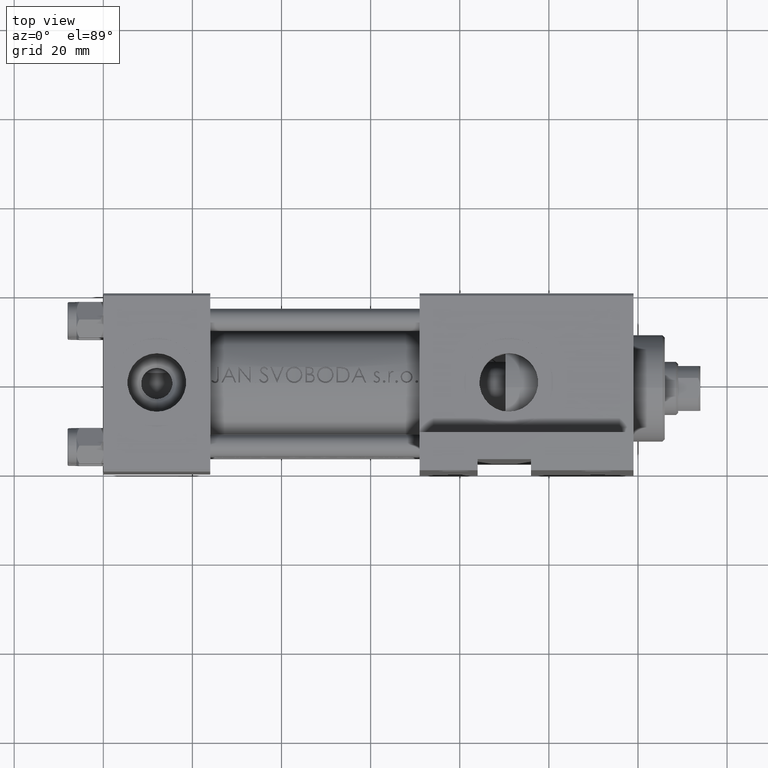
[diagram: clean part render]
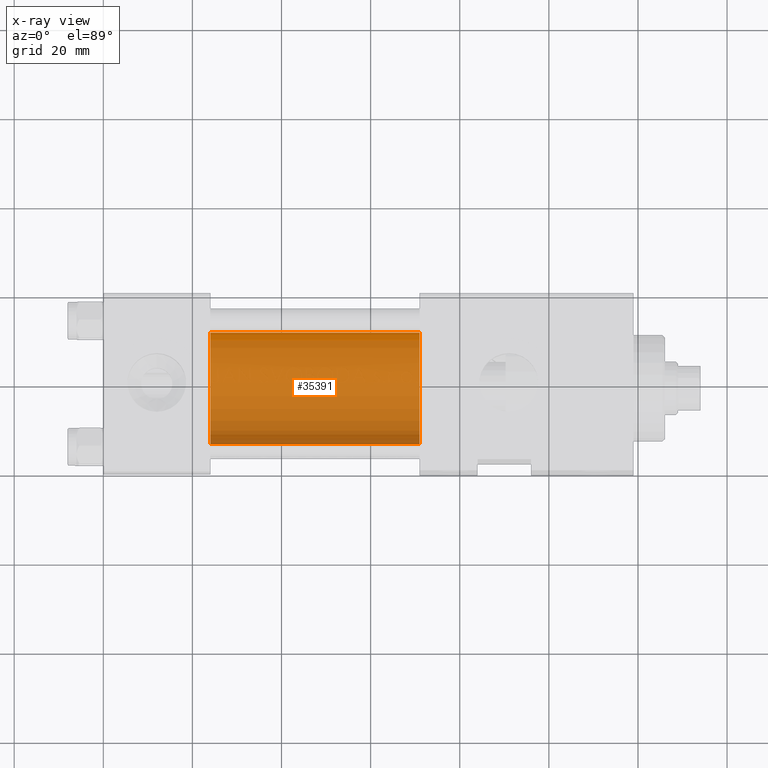
[diagram: x-ray — body ghosted, one internal face saturated and labeled with its STEP entity id]
A machine part, top view, then the same camera in x-ray: the body is ghosted and one INTERNAL B-rep face — a face not visible from any outside direction — is saturated and labeled: STEP entity #35391.
In plain terms, the highlighted cylindrical surface (partial cylindrical patch) has radius 12.5 mm, axis along (-1, -0, 0).
Its self-contained STEP definition (entity closure, byte-faithful):
#821 = DIRECTION ( 'NONE',  ( -1.000000000000000000, -0.000000000000000000, -0.000000000000000000 ) ) ;
#1358 = VECTOR ( 'NONE', #25946, 1000.000000000000000 ) ;
#1508 = VECTOR ( 'NONE', #821, 1000.000000000000000 ) ;
#2900 = EDGE_LOOP ( 'NONE', ( #41292, #7449, #41868, #37314 ) ) ;
#3254 = LINE ( 'NONE', #41654, #1358 ) ;
#3560 = CARTESIAN_POINT ( 'NONE',  ( 71.00000000000001421, 1.530808498934191127E-15, -13.50000000000000533 ) ) ;
#5524 = VERTEX_POINT ( 'NONE', #42179 ) ;
#6419 = CARTESIAN_POINT ( 'NONE',  ( 71.00000000000001421, 0.000000000000000000, -1.000000000000007772 ) ) ;
#7449 = ORIENTED_EDGE ( 'NONE', *, *, #46556, .T. ) ;
#8122 = CARTESIAN_POINT ( 'NONE',  ( 71.00000000000001421, 0.000000000000000000, 11.49999999999998934 ) ) ;
#8309 = LINE ( 'NONE', #38732, #1508 ) ;
#11384 = CYLINDRICAL_SURFACE ( 'NONE', #31433, 12.49999999999999645 ) ;
#11638 = DIRECTION ( 'NONE',  ( -1.000000000000000000, -0.000000000000000000, -0.000000000000000000 ) ) ;
#13954 = VERTEX_POINT ( 'NONE', #3560 ) ;
#16090 = FACE_OUTER_BOUND ( 'NONE', #2900, .T. ) ;
#19609 = DIRECTION ( 'NONE',  ( 1.000000000000000000, 0.000000000000000000, 0.000000000000000000 ) ) ;
#20206 = EDGE_CURVE ( 'NONE', #5524, #33460, #38847, .T. ) ;
#22919 = EDGE_CURVE ( 'NONE', #13954, #5524, #3254, .T. ) ;
#25946 = DIRECTION ( 'NONE',  ( -1.000000000000000000, -0.000000000000000000, -0.000000000000000000 ) ) ;
#27314 = CARTESIAN_POINT ( 'NONE',  ( 71.00000000000001421, 0.000000000000000000, -1.000000000000007772 ) ) ;
#27594 = VERTEX_POINT ( 'NONE', #8122 ) ;
#27842 = CIRCLE ( 'NONE', #37406, 12.49999999999999645 ) ;
#31433 = AXIS2_PLACEMENT_3D ( 'NONE', #27314, #11638, #42523 ) ;
#33460 = VERTEX_POINT ( 'NONE', #34003 ) ;
#34003 = CARTESIAN_POINT ( 'NONE',  ( 24.00000000000000000, 0.000000000000000000, 11.49999999999998934 ) ) ;
#34591 = CARTESIAN_POINT ( 'NONE',  ( 24.00000000000000000, 0.000000000000000000, -1.000000000000007772 ) ) ;
#34862 = AXIS2_PLACEMENT_3D ( 'NONE', #34591, #19609, #42311 ) ;
#35391 = ADVANCED_FACE ( 'NONE', ( #16090 ), #11384, .F. ) ;
#36344 = DIRECTION ( 'NONE',  ( 1.000000000000000000, 0.000000000000000000, 0.000000000000000000 ) ) ;
#37094 = DIRECTION ( 'NONE',  ( 0.000000000000000000, 0.000000000000000000, -1.000000000000000000 ) ) ;
#37314 = ORIENTED_EDGE ( 'NONE', *, *, #20206, .F. ) ;
#37406 = AXIS2_PLACEMENT_3D ( 'NONE', #6419, #36344, #37094 ) ;
#38732 = CARTESIAN_POINT ( 'NONE',  ( 71.00000000000001421, 0.000000000000000000, 11.49999999999998934 ) ) ;
#38847 = CIRCLE ( 'NONE', #34862, 12.49999999999999645 ) ;
#41292 = ORIENTED_EDGE ( 'NONE', *, *, #22919, .F. ) ;
#41654 = CARTESIAN_POINT ( 'NONE',  ( 71.00000000000001421, 1.530808498934191127E-15, -13.50000000000000533 ) ) ;
#41868 = ORIENTED_EDGE ( 'NONE', *, *, #44738, .T. ) ;
#42179 = CARTESIAN_POINT ( 'NONE',  ( 24.00000000000000000, 1.530808498934191127E-15, -13.50000000000000533 ) ) ;
#42311 = DIRECTION ( 'NONE',  ( 0.000000000000000000, 0.000000000000000000, -1.000000000000000000 ) ) ;
#42523 = DIRECTION ( 'NONE',  ( 0.000000000000000000, 0.000000000000000000, 1.000000000000000000 ) ) ;
#44738 = EDGE_CURVE ( 'NONE', #27594, #33460, #8309, .T. ) ;
#46556 = EDGE_CURVE ( 'NONE', #13954, #27594, #27842, .T. ) ;